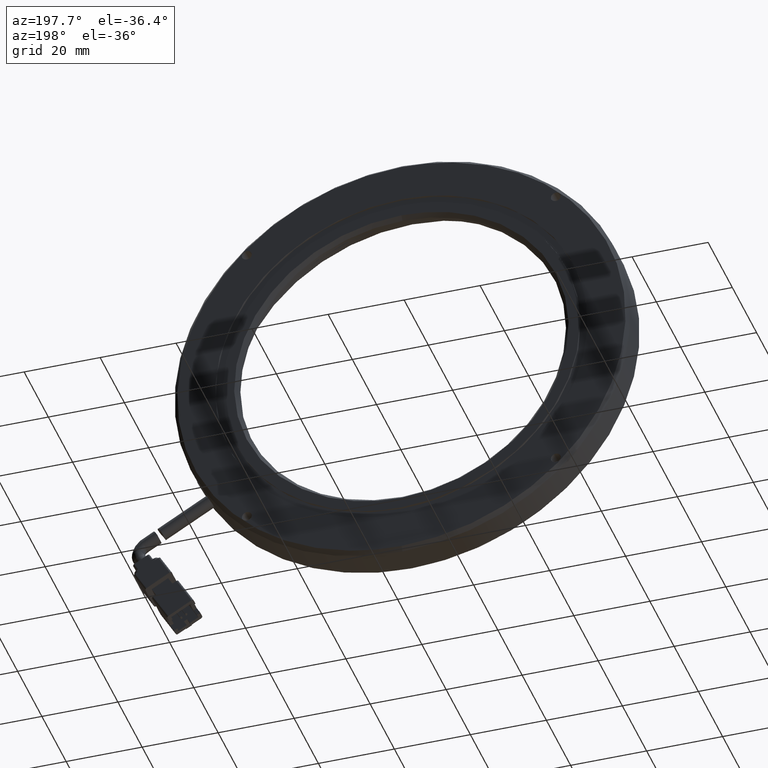
[diagram: clean part render]
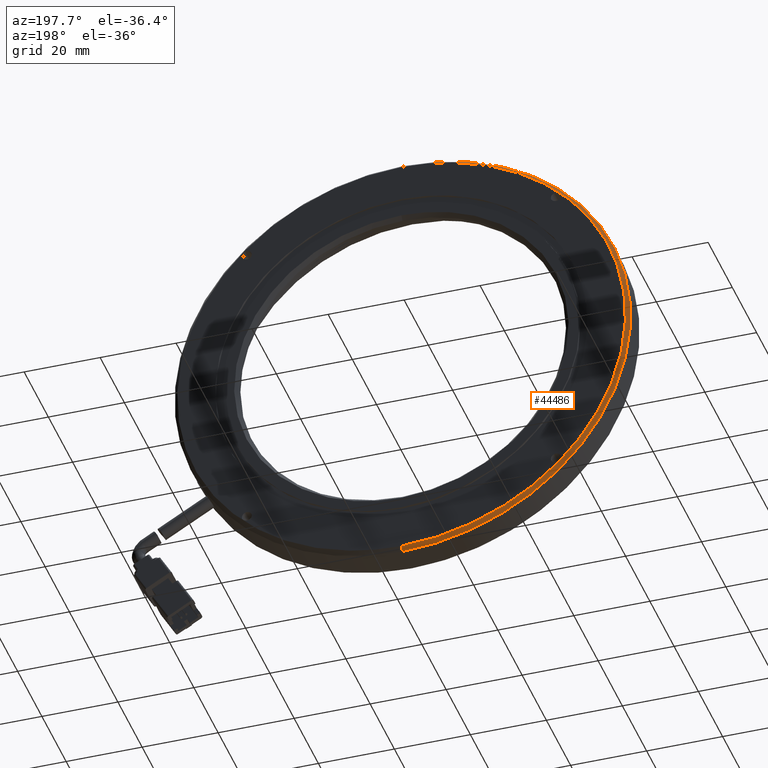
[diagram: same view with one face highlighted and labeled with its STEP entity id]
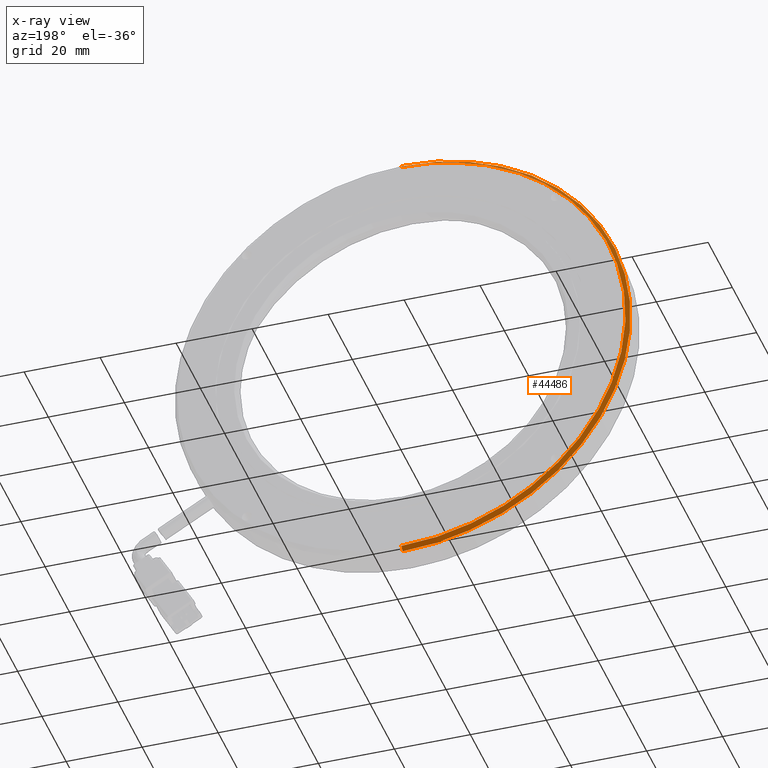
[diagram: x-ray of the same camera — body ghosted, the highlighted face saturated]
A machine part, auxiliary view. The second image highlights one B-rep face of the part: STEP entity #44486.
The next image is the same camera in x-ray: the body ghosted, the highlighted face saturated — about 0% of this face is hidden behind the body in this view.
In plain terms, the highlighted conical surface has half-angle 45 deg.
Its self-contained STEP definition (entity closure, byte-faithful):
#390 = CARTESIAN_POINT ( 'NONE',  ( 56.45624510954999000, 28.01889671361273300, -58.99999999999837300 ) ) ;
#1040 = EDGE_CURVE ( 'NONE', #23246, #21032, #46647, .T. ) ;
#2837 = CARTESIAN_POINT ( 'NONE',  ( 22.07120176766227000, 28.01889671361999800, -47.98336492475849700 ) ) ;
#3058 = CARTESIAN_POINT ( 'NONE',  ( 0.5576078955319094800, 28.01889671361999500, -18.97558981329973100 ) ) ;
#3248 = CARTESIAN_POINT ( 'NONE',  ( 0.5575653173373561500, 28.01889671361999800, 18.97556789601715700 ) ) ;
#3459 = CARTESIAN_POINT ( 'NONE',  ( 22.07123469177744100, 28.01889671362000600, 47.98334557218203100 ) ) ;
#3666 = CARTESIAN_POINT ( 'NONE',  ( 56.45624510953946600, 28.01889671361563600, 58.99999999999903400 ) ) ;
#4410 = EDGE_CURVE ( 'NONE', #47095, #27737, #43502, .T. ) ;
#7677 = CARTESIAN_POINT ( 'NONE',  ( 52.59592180186948000, 28.01889671362000200, -58.90525065819665000 ) ) ;
#7896 = CARTESIAN_POINT ( 'NONE',  ( 17.53358293631749700, 28.01889671361998800, -44.38198828885076400 ) ) ;
#7909 = CARTESIAN_POINT ( 'NONE',  ( 56.45624510955652700, 28.01889671361563600, -58.99999999999903400 ) ) ;
#8111 = CARTESIAN_POINT ( 'NONE',  ( -1.033157937189928900, 28.01889671361999800, -13.40519259357324000 ) ) ;
#8319 = CARTESIAN_POINT ( 'NONE',  ( 2.686663640519863200, 28.01889671361998800, 24.36322409152957000 ) ) ;
#8518 = CARTESIAN_POINT ( 'NONE',  ( 56.45624510954999000, 28.01889671361273300, 0.0000000000000000000 ) ) ;
#8529 = CARTESIAN_POINT ( 'NONE',  ( 26.93999753616109400, 28.01889671362000600, 51.12261452411696200 ) ) ;
#8890 = DIRECTION ( 'NONE',  ( 0.0000000000000000000, 1.000000000000000000, 0.0000000000000000000 ) ) ;
#12705 = CARTESIAN_POINT ( 'NONE',  ( 46.84078609387089600, 28.01889671361999800, -58.24322792448489100 ) ) ;
#12909 = CARTESIAN_POINT ( 'NONE',  ( 13.37081061928047500, 28.01889671362000200, -40.35318884435886100 ) ) ;
#13111 = CARTESIAN_POINT ( 'NONE',  ( -2.070269391666185400, 28.01889671361999800, -7.705696041488929300 ) ) ;
#13316 = CARTESIAN_POINT ( 'NONE',  ( 5.333600303516282900, 28.01889671361999500, 29.51626385754919800 ) ) ;
#13540 = CARTESIAN_POINT ( 'NONE',  ( 32.09303480236629700, 28.01889671361999800, 53.76954819142763100 ) ) ;
#14729 = AXIS2_PLACEMENT_3D ( 'NONE', #8518, #33157, #38128 ) ;
#17682 = CARTESIAN_POINT ( 'NONE',  ( 41.17825251257216500, 28.01889671361999800, -57.02029106688880900 ) ) ;
#17885 = CARTESIAN_POINT ( 'NONE',  ( 9.622974588964332600, 28.01889671361999800, -35.93576613169075500 ) ) ;
#18107 = CARTESIAN_POINT ( 'NONE',  ( -2.543738517786937200, 28.01889671361999800, -1.931972714088365400 ) ) ;
#18316 = CARTESIAN_POINT ( 'NONE',  ( 8.472870901399421200, 28.01889671361999800, 34.38502944804782400 ) ) ;
#18532 = CARTESIAN_POINT ( 'NONE',  ( 37.48067167917770300, 28.01889671362000600, 55.89864047290073800 ) ) ;
#18749 = ORIENTED_EDGE ( 'NONE', *, *, #50988, .F. ) ;
#18796 = EDGE_CURVE ( 'NONE', #27737, #21032, #42481, .T. ) ;
#21032 = VERTEX_POINT ( 'NONE', #62453 ) ;
#21719 = EDGE_LOOP ( 'NONE', ( #27175, #18749, #24453, #25231 ) ) ;
#22593 = CARTESIAN_POINT ( 'NONE',  ( 35.66285435173684700, 28.01889671361999100, -55.24821763586806600 ) ) ;
#22806 = CARTESIAN_POINT ( 'NONE',  ( 6.326168555550288500, 28.01889671362000200, -31.17226234672106200 ) ) ;
#23023 = CARTESIAN_POINT ( 'NONE',  ( -2.449002290019338000, 28.01889671361999500, 3.860339690691318500 ) ) ;
#23222 = CARTESIAN_POINT ( 'NONE',  ( 12.07423440884353700, 28.01889671362000600, 38.92263744467685900 ) ) ;
#23246 = VERTEX_POINT ( 'NONE', #44067 ) ;
#23430 = CARTESIAN_POINT ( 'NONE',  ( 43.05106890431095200, 28.01889671362000600, 57.48940630675628700 ) ) ;
#24453 = ORIENTED_EDGE ( 'NONE', *, *, #4410, .T. ) ;
#25231 = ORIENTED_EDGE ( 'NONE', *, *, #18796, .T. ) ;
#27175 = ORIENTED_EDGE ( 'NONE', *, *, #1040, .F. ) ;
#27573 = CARTESIAN_POINT ( 'NONE',  ( 30.34770791048282800, 28.01889671361999800, -52.94407366713429800 ) ) ;
#27737 = VERTEX_POINT ( 'NONE', #46214 ) ;
#27774 = CARTESIAN_POINT ( 'NONE',  ( 3.512142563457086600, 28.01889671362000600, -26.10855263534045900 ) ) ;
#27992 = CARTESIAN_POINT ( 'NONE',  ( -1.786979555089228900, 28.01889671361999500, 9.615475404701486500 ) ) ;
#28183 = CARTESIAN_POINT ( 'NONE',  ( 16.10303153765625700, 28.01889671361999800, 43.08541207775698500 ) ) ;
#28403 = CARTESIAN_POINT ( 'NONE',  ( 48.75039949297048700, 28.01889671361999800, 58.52649812276438000 ) ) ;
#32332 = CARTESIAN_POINT ( 'NONE',  ( 56.45624510955652700, 28.01889671361563600, -58.99999999999903400 ) ) ;
#32544 = CARTESIAN_POINT ( 'NONE',  ( 25.28400095514289700, 28.01889671362000600, -50.13004932695016400 ) ) ;
#32747 = CARTESIAN_POINT ( 'NONE',  ( 1.207997220777768700, 28.01889671361999800, -20.79340328920050100 ) ) ;
#32959 = CARTESIAN_POINT ( 'NONE',  ( -0.5640347146378076300, 28.01889671361999800, 15.27802401999893400 ) ) ;
#33157 = DIRECTION ( 'NONE',  ( -0.0000000000000000000, -1.000000000000000000, -0.0000000000000000000 ) ) ;
#33165 = CARTESIAN_POINT ( 'NONE',  ( 20.52045217227514200, 28.01889671362000200, 46.83325063942586300 ) ) ;
#33383 = CARTESIAN_POINT ( 'NONE',  ( 54.52373859372237800, 28.01889671362000600, 58.99999999999840800 ) ) ;
#33832 = B_SPLINE_CURVE_WITH_KNOTS ( 'NONE', 3,
 ( #32332, #61958, #7677, #42266, #12705, #47294, #17682, #52275, #22593, #57212, #27573, #62176, #32544, #2837, #37484, #7896, #42477, #12909, #47512, #17885, #52487, #22806, #57429, #27774, #62393, #32747, #3058, #37689, #8111, #42683, #13111, #47714, #18107, #52679, #23023, #57643, #27992, #62589, #32959, #3248, #37915, #8319, #42893, #13316, #47933, #18316, #52894, #23222, #57861, #28183, #62801, #33165, #3459, #38137, #8529, #43095, #13540, #48139, #18532, #53110, #23430, #58078, #28403, #63020, #33383, #3666 ),
 .UNSPECIFIED., .F., .F.,
 ( 4, 2, 2, 2, 2, 2, 2, 2, 2, 2, 2, 2, 2, 2, 2, 2, 2, 2, 2, 2, 2, 2, 2, 2, 2, 2, 2, 2, 2, 2, 2, 2, 4 ),
 ( 0.0000000000000000000, 0.03125000000000003500, 0.06250000000000006900, 0.09375000000000011100, 0.1250000000000001400, 0.1562500000000001700, 0.1875000000000002200, 0.2187500000000002500, 0.2500000000000002800, 0.2812500000000003300, 0.3125000000000003300, 0.3437500000000003900, 0.3750000000000004400, 0.4062500000000004400, 0.4375000000000005000, 0.4687500000000005000, 0.5000000000000005600, 0.5312500000000005600, 0.5625000000000006700, 0.5937500000000006700, 0.6250000000000006700, 0.6562500000000007800, 0.6875000000000007800, 0.7187500000000006700, 0.7500000000000005600, 0.7812500000000005600, 0.8125000000000004400, 0.8437500000000003300, 0.8750000000000003300, 0.9062500000000002200, 0.9375000000000001100, 0.9687500000000001100, 1.000000000000000000 ),
 .UNSPECIFIED. ) ;
#37484 = CARTESIAN_POINT ( 'NONE',  ( 20.52049975148913000, 28.01889671361999500, -46.83324520796177400 ) ) ;
#37689 = CARTESIAN_POINT ( 'NONE',  ( -0.5640772928252565400, 28.01889671361999500, -15.27800210273978500 ) ) ;
#37915 = CARTESIAN_POINT ( 'NONE',  ( 1.208041742247761000, 28.01889671361999500, 20.79342092754133400 ) ) ;
#38128 = DIRECTION ( 'NONE',  ( 0.0000000000000000000, 0.0000000000000000000, -1.000000000000000000 ) ) ;
#38137 = CARTESIAN_POINT ( 'NONE',  ( 25.28396803100747200, 28.01889671362000200, 50.13006867951311600 ) ) ;
#38484 = CARTESIAN_POINT ( 'NONE',  ( 56.45624510954999000, 27.01889671361802000, 0.0000000000000000000 ) ) ;
#41326 = FACE_OUTER_BOUND ( 'NONE', #21719, .T. ) ;
#42266 = CARTESIAN_POINT ( 'NONE',  ( 48.75054585836614500, 28.01889671361999800, -58.52654708912169200 ) ) ;
#42477 = CARTESIAN_POINT ( 'NONE',  ( 16.10307941982210500, 28.01889671361999800, -43.08541133566441800 ) ) ;
#42481 = CIRCLE ( 'NONE', #46507, 60.00000000000000000 ) ;
#42683 = CARTESIAN_POINT ( 'NONE',  ( -1.787014931285454900, 28.01889671361999500, -9.615465404342733900 ) ) ;
#42893 = CARTESIAN_POINT ( 'NONE',  ( 3.512180722476722300, 28.01889671361999500, 26.10855108790964300 ) ) ;
#43095 = CARTESIAN_POINT ( 'NONE',  ( 30.34767773746937200, 28.01889671362000200, 52.94409466898430600 ) ) ;
#43448 = DIRECTION ( 'NONE',  ( 0.0000000000000000000, 0.0000000000000000000, -1.000000000000000000 ) ) ;
#43502 = LINE ( 'NONE', #390, #53644 ) ;
#44067 = CARTESIAN_POINT ( 'NONE',  ( 56.45624510953946600, 28.01889671361563600, 58.99999999999903400 ) ) ;
#44486 = ADVANCED_FACE ( 'NONE', ( #41326 ), #52998, .T. ) ;
#46214 = CARTESIAN_POINT ( 'NONE',  ( 56.45624510954999000, 27.01889671361802000, -60.00000000000085300 ) ) ;
#46507 = AXIS2_PLACEMENT_3D ( 'NONE', #38484, #8890, #43448 ) ;
#46647 = LINE ( 'NONE', #55174, #59826 ) ;
#47095 = VERTEX_POINT ( 'NONE', #7909 ) ;
#47294 = CARTESIAN_POINT ( 'NONE',  ( 43.05104612734906800, 28.01889671362000900, -57.48943516309763200 ) ) ;
#47512 = CARTESIAN_POINT ( 'NONE',  ( 12.07428213334629600, 28.01889671362000600, -38.92264139963090500 ) ) ;
#47714 = CARTESIAN_POINT ( 'NONE',  ( -2.449038136548592700, 28.01889671362000200, -3.860326517411778900 ) ) ;
#47933 = CARTESIAN_POINT ( 'NONE',  ( 6.326205065998705000, 28.01889671362000200, 31.17225804825715600 ) ) ;
#48139 = CARTESIAN_POINT ( 'NONE',  ( 35.66281039765156200, 28.01889671361999800, 55.24823664490009600 ) ) ;
#50988 = EDGE_CURVE ( 'NONE', #47095, #23246, #33832, .T. ) ;
#51014 = DIRECTION ( 'NONE',  ( 0.0000000000000000000, -0.7071067811838023200, -0.7071067811892927100 ) ) ;
#52275 = CARTESIAN_POINT ( 'NONE',  ( 37.48064579052334000, 28.01889671361999800, -55.89866854951517200 ) ) ;
#52487 = CARTESIAN_POINT ( 'NONE',  ( 8.472907411861383400, 28.01889671362000200, -34.38502514960418200 ) ) ;
#52679 = CARTESIAN_POINT ( 'NONE',  ( -2.543771263109872100, 28.01889671361999800, 1.931972714076232800 ) ) ;
#52894 = CARTESIAN_POINT ( 'NONE',  ( 9.623022313451610200, 28.01889671362000900, 35.93577008662595800 ) ) ;
#52998 = CONICAL_SURFACE ( 'NONE', #14729, 58.99999999999837300, 0.7853981634013306200 ) ;
#53110 = CARTESIAN_POINT ( 'NONE',  ( 41.17822662389451000, 28.01889671362000600, 57.02031914349623100 ) ) ;
#53644 = VECTOR ( 'NONE', #51014, 1000.000000000000000 ) ;
#55174 = CARTESIAN_POINT ( 'NONE',  ( 56.45624510954999700, 28.01889671361273300, 58.99999999999837300 ) ) ;
#56186 = DIRECTION ( 'NONE',  ( 8.659560562388551900E-017, -0.7071067811838023200, 0.7071067811892927100 ) ) ;
#57212 = CARTESIAN_POINT ( 'NONE',  ( 32.09299084830343700, 28.01889671361999500, -53.76956720046892700 ) ) ;
#57429 = CARTESIAN_POINT ( 'NONE',  ( 5.333638462547415100, 28.01889671362000200, -29.51626231013987900 ) ) ;
#57643 = CARTESIAN_POINT ( 'NONE',  ( -2.070305238197824900, 28.01889671361998800, 7.705682868185141900 ) ) ;
#57861 = CARTESIAN_POINT ( 'NONE',  ( 13.37085850142912800, 28.01889671362000600, 40.35318810224907100 ) ) ;
#58078 = CARTESIAN_POINT ( 'NONE',  ( 46.84076331688513100, 28.01889671362000200, 58.24325678082148300 ) ) ;
#59826 = VECTOR ( 'NONE', #56186, 1000.000000000000000 ) ;
#61958 = CARTESIAN_POINT ( 'NONE',  ( 54.52408943529658100, 28.01889671362000900, -58.99999999999839400 ) ) ;
#62176 = CARTESIAN_POINT ( 'NONE',  ( 26.93996736316912100, 28.01889671362000200, -51.12263552597846000 ) ) ;
#62393 = CARTESIAN_POINT ( 'NONE',  ( 2.686708161999179700, 28.01889671362000200, -24.36324172989291600 ) ) ;
#62453 = CARTESIAN_POINT ( 'NONE',  ( 56.45624510954999700, 27.01889671361802000, 60.00000000000085300 ) ) ;
#62589 = CARTESIAN_POINT ( 'NONE',  ( -1.033193313390902800, 28.01889671361999500, 13.40518259319057600 ) ) ;
#62801 = CARTESIAN_POINT ( 'NONE',  ( 17.53363051551256300, 28.01889671362000200, 44.38198285737119200 ) ) ;
#63020 = CARTESIAN_POINT ( 'NONE',  ( 52.59606816724094400, 28.01889671362000900, 58.90529962455158900 ) ) ;